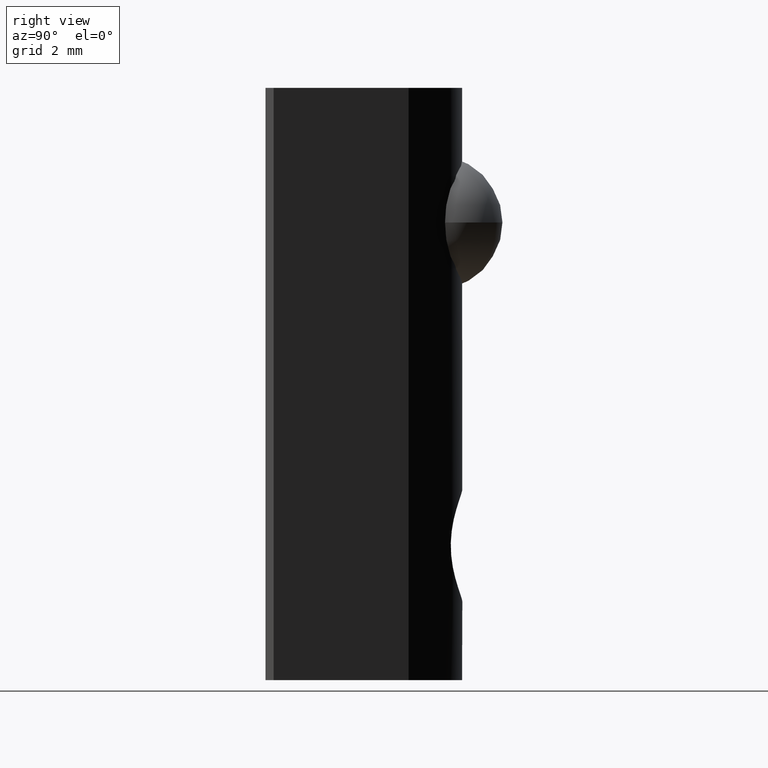
[diagram: clean part render]
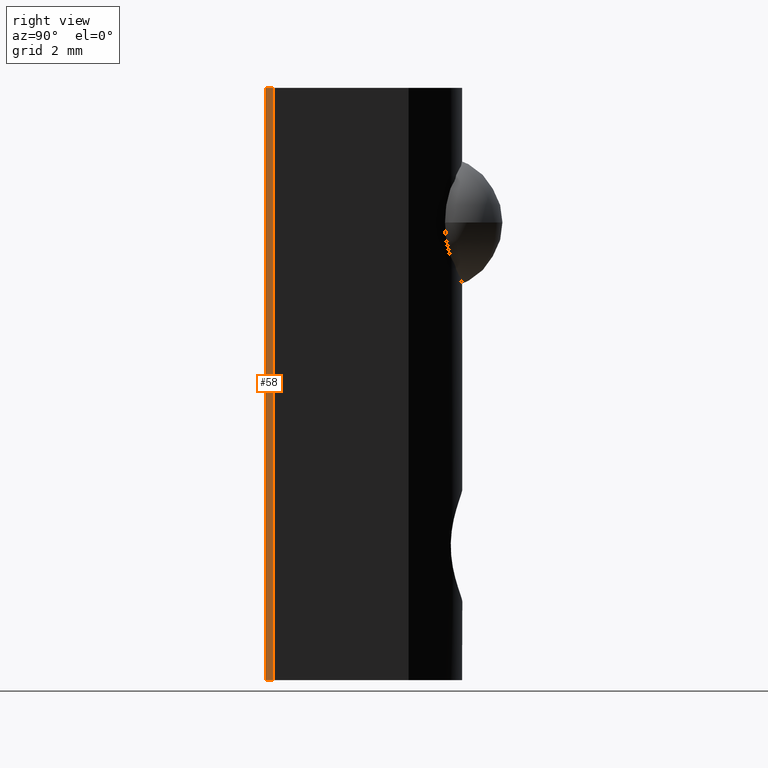
[diagram: same view with one face highlighted and labeled with its STEP entity id]
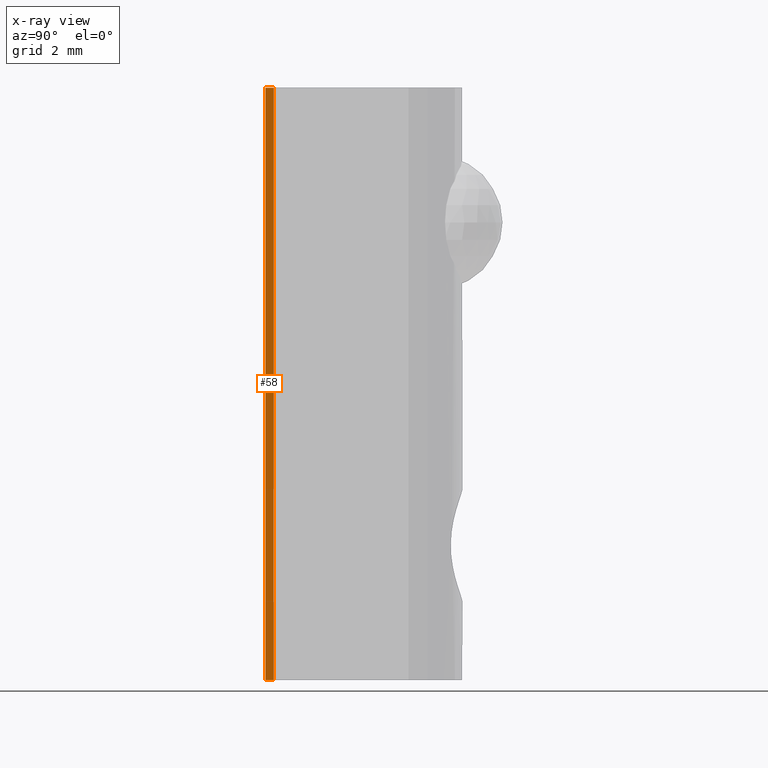
[diagram: x-ray of the same camera — body ghosted, the highlighted face saturated]
A machine part, right view. The second image highlights one B-rep face of the part: STEP entity #58.
The next image is the same camera in x-ray: the body ghosted, the highlighted face saturated — about 0% of this face is hidden behind the body in this view.
In plain terms, the highlighted planar face has unit normal (1, 0, 0).
Its self-contained STEP definition (entity closure, byte-faithful):
#58 = ADVANCED_FACE ( 'NONE', ( #158 ), #68, .T. ) ;
#68 = PLANE ( 'NONE',  #178 ) ;
#107 = VERTEX_POINT ( 'NONE', #255 ) ;
#113 = EDGE_LOOP ( 'NONE', ( #505, #583, #358, #186 ) ) ;
#130 = CARTESIAN_POINT ( 'NONE',  ( 4.000000000000000000, -0.3000000000000002100, -22.00000000000000000 ) ) ;
#131 = VECTOR ( 'NONE', #517, 1000.000000000000000 ) ;
#136 = CARTESIAN_POINT ( 'NONE',  ( 4.000000000000000000, -1.102182119232618300E-016, 0.0000000000000000000 ) ) ;
#140 = CARTESIAN_POINT ( 'NONE',  ( 4.000000000000000000, -1.102182119232618300E-016, -22.00000000000000000 ) ) ;
#158 = FACE_OUTER_BOUND ( 'NONE', #113, .T. ) ;
#178 = AXIS2_PLACEMENT_3D ( 'NONE', #760, #762, #768 ) ;
#186 = ORIENTED_EDGE ( 'NONE', *, *, #754, .T. ) ;
#187 = DIRECTION ( 'NONE',  ( -0.0000000000000000000, 1.000000000000000000, -0.0000000000000000000 ) ) ;
#251 = VECTOR ( 'NONE', #328, 1000.000000000000000 ) ;
#255 = CARTESIAN_POINT ( 'NONE',  ( 4.000000000000000000, -1.102182119232618300E-016, -22.00000000000000000 ) ) ;
#282 = CARTESIAN_POINT ( 'NONE',  ( 4.000000000000000000, -1.102182119232618300E-016, 0.0000000000000000000 ) ) ;
#295 = VECTOR ( 'NONE', #187, 1000.000000000000000 ) ;
#323 = CARTESIAN_POINT ( 'NONE',  ( 4.000000000000000000, -0.3000000000000002100, 0.0000000000000000000 ) ) ;
#328 = DIRECTION ( 'NONE',  ( 0.0000000000000000000, 0.0000000000000000000, 1.000000000000000000 ) ) ;
#329 = VERTEX_POINT ( 'NONE', #130 ) ;
#358 = ORIENTED_EDGE ( 'NONE', *, *, #440, .T. ) ;
#372 = LINE ( 'NONE', #282, #550 ) ;
#382 = VERTEX_POINT ( 'NONE', #323 ) ;
#419 = LINE ( 'NONE', #703, #131 ) ;
#440 = EDGE_CURVE ( 'NONE', #329, #107, #466, .T. ) ;
#446 = LINE ( 'NONE', #140, #251 ) ;
#466 = LINE ( 'NONE', #644, #295 ) ;
#505 = ORIENTED_EDGE ( 'NONE', *, *, #809, .F. ) ;
#517 = DIRECTION ( 'NONE',  ( 0.0000000000000000000, 0.0000000000000000000, 1.000000000000000000 ) ) ;
#550 = VECTOR ( 'NONE', #714, 1000.000000000000000 ) ;
#583 = ORIENTED_EDGE ( 'NONE', *, *, #699, .F. ) ;
#644 = CARTESIAN_POINT ( 'NONE',  ( 4.000000000000000000, -1.102182119232618300E-016, -22.00000000000000000 ) ) ;
#699 = EDGE_CURVE ( 'NONE', #329, #382, #419, .T. ) ;
#703 = CARTESIAN_POINT ( 'NONE',  ( 4.000000000000000000, -0.3000000000000002100, -22.00000000000000000 ) ) ;
#714 = DIRECTION ( 'NONE',  ( -0.0000000000000000000, 1.000000000000000000, -0.0000000000000000000 ) ) ;
#754 = EDGE_CURVE ( 'NONE', #107, #766, #446, .T. ) ;
#760 = CARTESIAN_POINT ( 'NONE',  ( 4.000000000000000000, -1.102182119232618300E-016, -22.00000000000000000 ) ) ;
#762 = DIRECTION ( 'NONE',  ( 1.000000000000000000, 0.0000000000000000000, -0.0000000000000000000 ) ) ;
#766 = VERTEX_POINT ( 'NONE', #136 ) ;
#768 = DIRECTION ( 'NONE',  ( -0.0000000000000000000, 0.0000000000000000000, -1.000000000000000000 ) ) ;
#809 = EDGE_CURVE ( 'NONE', #382, #766, #372, .T. ) ;